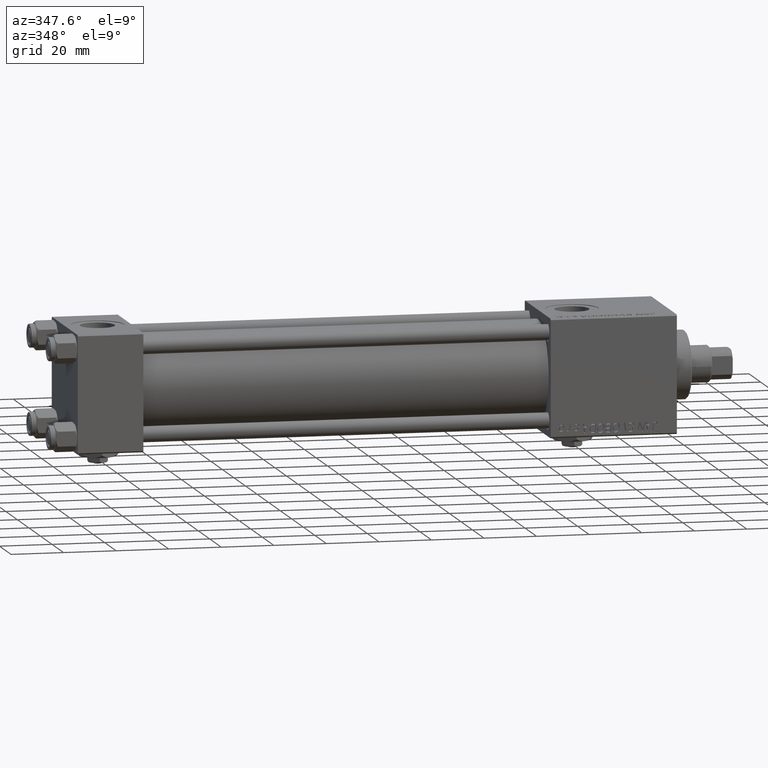
[diagram: clean part render]
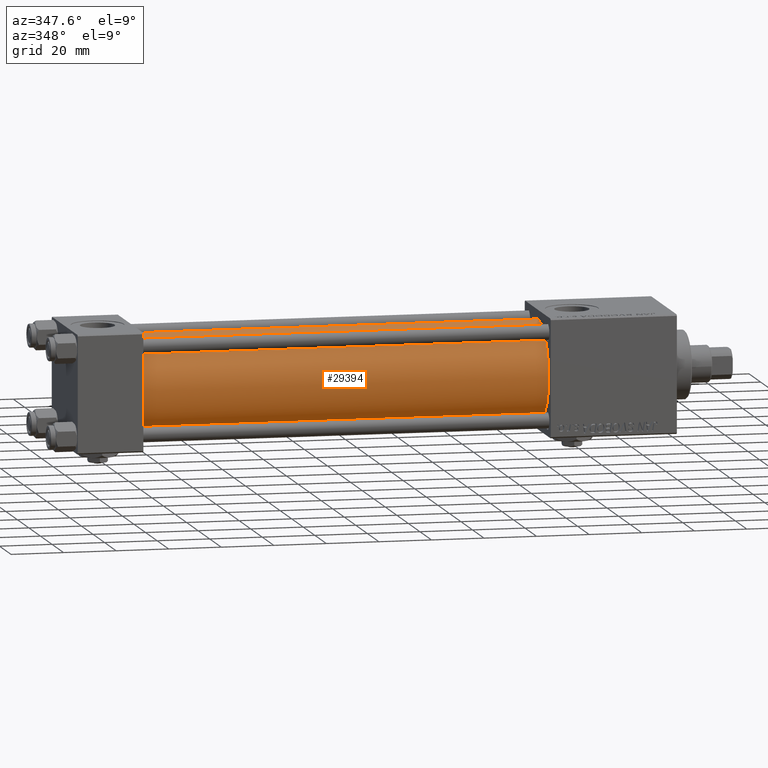
[diagram: same view with one face highlighted and labeled with its STEP entity id]
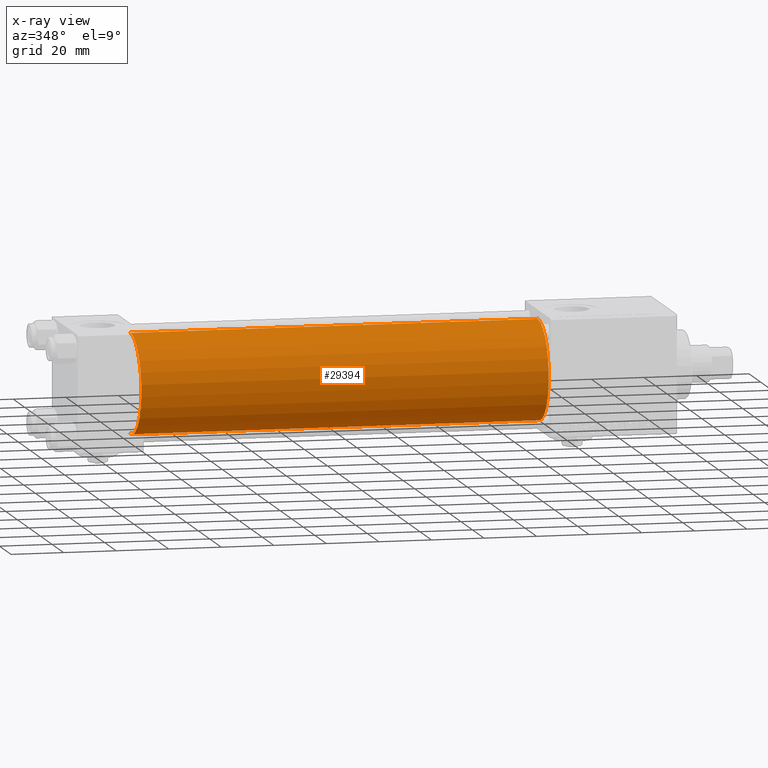
[diagram: x-ray of the same camera — body ghosted, the highlighted face saturated]
A machine part, auxiliary view. The second image highlights one B-rep face of the part: STEP entity #29394.
The next image is the same camera in x-ray: the body ghosted, the highlighted face saturated — about 0% of this face is hidden behind the body in this view.
In plain terms, the highlighted cylindrical surface (partial cylindrical patch) has radius 19 mm, axis along (-1, -0, -0).
Its self-contained STEP definition (entity closure, byte-faithful):
#1800 = DIRECTION ( 'NONE',  ( 0.000000000000000000, 0.000000000000000000, 1.000000000000000000 ) ) ;
#2463 = DIRECTION ( 'NONE',  ( 1.000000000000000000, 0.000000000000000000, 0.000000000000000000 ) ) ;
#5140 = EDGE_CURVE ( 'NONE', #39285, #39692, #21501, .T. ) ;
#8401 = DIRECTION ( 'NONE',  ( -1.000000000000000000, -0.000000000000000000, -0.000000000000000000 ) ) ;
#8536 = VERTEX_POINT ( 'NONE', #46391 ) ;
#9192 = DIRECTION ( 'NONE',  ( 1.000000000000000000, -0.000000000000000000, 0.000000000000000000 ) ) ;
#11949 = EDGE_LOOP ( 'NONE', ( #19705, #31828, #38142, #17928 ) ) ;
#12151 = VERTEX_POINT ( 'NONE', #18638 ) ;
#12338 = CYLINDRICAL_SURFACE ( 'NONE', #20507, 19.00000000000000000 ) ;
#12515 = LINE ( 'NONE', #24133, #32802 ) ;
#13295 = CIRCLE ( 'NONE', #25962, 19.00000000000000000 ) ;
#14774 = DIRECTION ( 'NONE',  ( -1.000000000000000000, -0.000000000000000000, -0.000000000000000000 ) ) ;
#15094 = EDGE_CURVE ( 'NONE', #12151, #8536, #13295, .T. ) ;
#17928 = ORIENTED_EDGE ( 'NONE', *, *, #5140, .T. ) ;
#18277 = CARTESIAN_POINT ( 'NONE',  ( 180.0000000000000000, -2.602085213965210642E-15, 0.000000000000000000 ) ) ;
#18638 = CARTESIAN_POINT ( 'NONE',  ( 180.0000000000000000, -2.602085213965210642E-15, 19.00000000000000000 ) ) ;
#19384 = CARTESIAN_POINT ( 'NONE',  ( 24.99999999999999289, -2.752562955852396712E-16, -19.00000000000000000 ) ) ;
#19705 = ORIENTED_EDGE ( 'NONE', *, *, #50703, .F. ) ;
#20507 = AXIS2_PLACEMENT_3D ( 'NONE', #44550, #8401, #1800 ) ;
#21501 = CIRCLE ( 'NONE', #42571, 19.00000000000000000 ) ;
#24133 = CARTESIAN_POINT ( 'NONE',  ( 180.0000000000000000, -2.752562955852396712E-16, -19.00000000000000000 ) ) ;
#25962 = AXIS2_PLACEMENT_3D ( 'NONE', #18277, #2463, #50227 ) ;
#29258 = DIRECTION ( 'NONE',  ( 0.000000000000000000, 0.000000000000000000, 1.000000000000000000 ) ) ;
#29394 = ADVANCED_FACE ( 'NONE', ( #48508 ), #12338, .T. ) ;
#31152 = CARTESIAN_POINT ( 'NONE',  ( 180.0000000000000000, -2.602085213965210642E-15, 19.00000000000000000 ) ) ;
#31828 = ORIENTED_EDGE ( 'NONE', *, *, #15094, .F. ) ;
#32218 = EDGE_CURVE ( 'NONE', #12151, #39285, #38574, .T. ) ;
#32312 = DIRECTION ( 'NONE',  ( -1.000000000000000000, -0.000000000000000000, -0.000000000000000000 ) ) ;
#32802 = VECTOR ( 'NONE', #32312, 1000.000000000000000 ) ;
#33471 = CARTESIAN_POINT ( 'NONE',  ( 24.99999999999999289, -2.602085213965210642E-15, 0.000000000000000000 ) ) ;
#38142 = ORIENTED_EDGE ( 'NONE', *, *, #32218, .T. ) ;
#38574 = LINE ( 'NONE', #31152, #43340 ) ;
#39285 = VERTEX_POINT ( 'NONE', #41749 ) ;
#39692 = VERTEX_POINT ( 'NONE', #19384 ) ;
#41749 = CARTESIAN_POINT ( 'NONE',  ( 24.99999999999999289, -2.602085213965210642E-15, 19.00000000000000000 ) ) ;
#42571 = AXIS2_PLACEMENT_3D ( 'NONE', #33471, #9192, #29258 ) ;
#43340 = VECTOR ( 'NONE', #14774, 1000.000000000000000 ) ;
#44550 = CARTESIAN_POINT ( 'NONE',  ( 180.0000000000000000, -2.602085213965210642E-15, 0.000000000000000000 ) ) ;
#46391 = CARTESIAN_POINT ( 'NONE',  ( 180.0000000000000000, -2.752562955852396712E-16, -19.00000000000000000 ) ) ;
#48508 = FACE_OUTER_BOUND ( 'NONE', #11949, .T. ) ;
#50227 = DIRECTION ( 'NONE',  ( 0.000000000000000000, 0.000000000000000000, -1.000000000000000000 ) ) ;
#50703 = EDGE_CURVE ( 'NONE', #8536, #39692, #12515, .T. ) ;